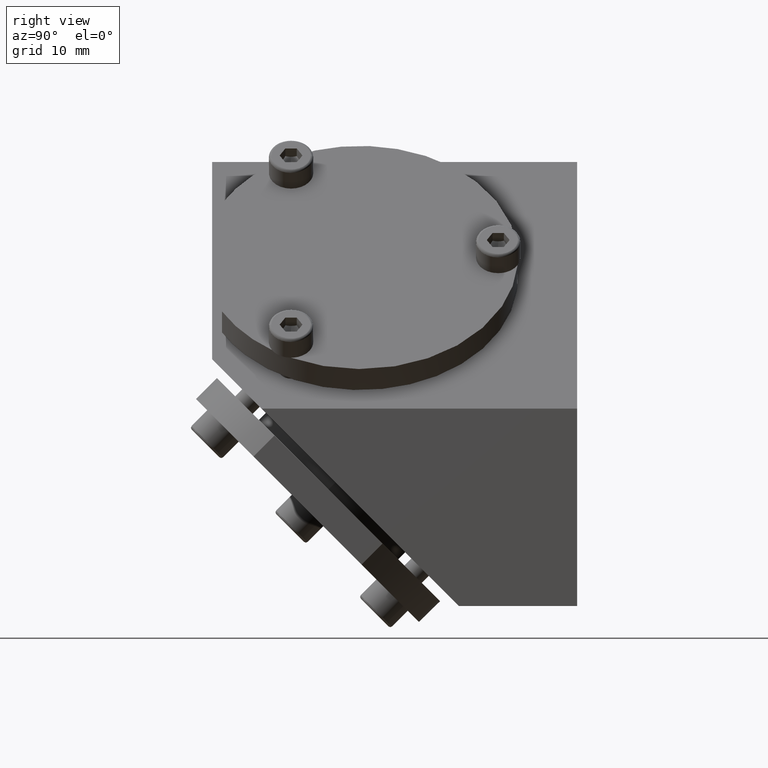
[diagram: clean part render]
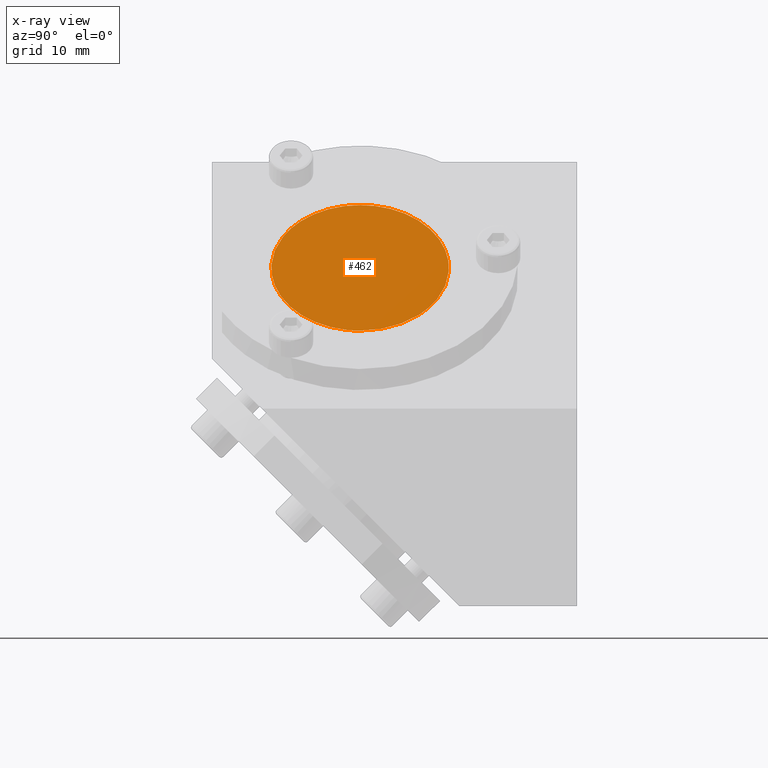
[diagram: x-ray — body ghosted, one internal face saturated and labeled with its STEP entity id]
A machine part, right view, then the same camera in x-ray: the body is ghosted and one INTERNAL B-rep face — a face not visible from any outside direction — is saturated and labeled: STEP entity #462.
In plain terms, the highlighted face is a freeform B-spline surface patch.
Its self-contained STEP definition (entity closure, byte-faithful):
#42=FACE_BOUND('',#970,.T.);
#97=B_SPLINE_SURFACE_WITH_KNOTS('',1,1,((#14634,#14635),(#14636,#14637)),
 .UNSPECIFIED.,.F.,.F.,.F.,(2,2),(2,2),(18.4967258583379,44.3892114741791),
(-14.6828819820071,12.7809581933606),.UNSPECIFIED.);
#462=ADVANCED_FACE('',(#712,#42),#97,.T.);
#712=FACE_OUTER_BOUND('',#969,.T.);
#969=EDGE_LOOP('',(#1670,#1671,#1672));
#970=EDGE_LOOP('',(#1673,#1674,#1675));
#1670=ORIENTED_EDGE('',*,*,#7386,.T.);
#1671=ORIENTED_EDGE('',*,*,#7387,.T.);
#1672=ORIENTED_EDGE('',*,*,#7388,.T.);
#1673=ORIENTED_EDGE('',*,*,#7389,.T.);
#1674=ORIENTED_EDGE('',*,*,#7390,.T.);
#1675=ORIENTED_EDGE('',*,*,#7391,.T.);
#3000=PCURVE('',#97,#4330);
#3001=PCURVE('',#97,#4331);
#3002=PCURVE('',#97,#4332);
#3003=PCURVE('',#97,#4333);
#3004=PCURVE('',#97,#4334);
#3005=PCURVE('',#97,#4335);
#3006=PCURVE('',#9173,#4336);
#3011=PCURVE('',#9174,#4341);
#3012=PCURVE('',#9174,#4342);
#3043=PCURVE('',#9177,#4373);
#3044=PCURVE('',#9177,#4374);
#3050=PCURVE('',#9178,#4380);
#4330=DEFINITIONAL_REPRESENTATION('',(#8180),#23564);
#4331=DEFINITIONAL_REPRESENTATION('',(#8182),#23564);
#4332=DEFINITIONAL_REPRESENTATION('',(#8184),#23564);
#4333=DEFINITIONAL_REPRESENTATION('',(#8186),#23564);
#4334=DEFINITIONAL_REPRESENTATION('',(#8188),#23564);
#4335=DEFINITIONAL_REPRESENTATION('',(#8190),#23564);
#4336=DEFINITIONAL_REPRESENTATION('',(#5577),#23564);
#4341=DEFINITIONAL_REPRESENTATION('',(#5582),#23564);
#4342=DEFINITIONAL_REPRESENTATION('',(#5583),#23564);
#4373=DEFINITIONAL_REPRESENTATION('',(#5603),#23564);
#4374=DEFINITIONAL_REPRESENTATION('',(#5604),#23564);
#4380=DEFINITIONAL_REPRESENTATION('',(#5610),#23564);
#5577=B_SPLINE_CURVE_WITH_KNOTS('',1,(#17609,#17610),.UNSPECIFIED.,.F.,
 .F.,(2,2),(0.,0.117809724509618),.UNSPECIFIED.);
#5582=B_SPLINE_CURVE_WITH_KNOTS('',1,(#17623,#17624),.UNSPECIFIED.,.F.,
 .F.,(2,2),(0.15707963267948,0.31415926535898),.UNSPECIFIED.);
#5583=B_SPLINE_CURVE_WITH_KNOTS('',1,(#17625,#17626),.UNSPECIFIED.,.F.,
 .F.,(2,2),(0.117809724509618,0.15707963267948),.UNSPECIFIED.);
#5603=B_SPLINE_CURVE_WITH_KNOTS('',1,(#17817,#17818),.UNSPECIFIED.,.F.,
 .F.,(2,2),(28.2743338823081,47.1238898038468),.UNSPECIFIED.);
#5604=B_SPLINE_CURVE_WITH_KNOTS('',1,(#17819,#17820),.UNSPECIFIED.,.F.,
 .F.,(2,2),(0.,28.2743338823081),.UNSPECIFIED.);
#5610=B_SPLINE_CURVE_WITH_KNOTS('',1,(#17845,#17846),.UNSPECIFIED.,.F.,
 .F.,(2,2),(47.1238898038468,56.5486677646163),.UNSPECIFIED.);
#6676=SURFACE_CURVE('',#8179,(#3000,#3044),.PCURVE_S1.);
#6677=SURFACE_CURVE('',#8181,(#3001,#3043),.PCURVE_S1.);
#6678=SURFACE_CURVE('',#8183,(#3002,#3050),.PCURVE_S1.);
#6679=SURFACE_CURVE('',#8185,(#3003,#3012),.PCURVE_S1.);
#6680=SURFACE_CURVE('',#8187,(#3004,#3011),.PCURVE_S1.);
#6681=SURFACE_CURVE('',#8189,(#3005,#3006),.PCURVE_S1.);
#7386=EDGE_CURVE('',#8836,#8837,#6676,.T.);
#7387=EDGE_CURVE('',#8837,#8838,#6677,.T.);
#7388=EDGE_CURVE('',#8838,#8836,#6678,.T.);
#7389=EDGE_CURVE('',#8841,#8839,#6679,.T.);
#7390=EDGE_CURVE('',#8839,#8840,#6680,.T.);
#7391=EDGE_CURVE('',#8840,#8841,#6681,.T.);
#8179=(
BOUNDED_CURVE()
B_SPLINE_CURVE(2,(#17555,#17556,#17557,#17558,#17559,#17560,#17561),
 .UNSPECIFIED.,.F.,.F.)
B_SPLINE_CURVE_WITH_KNOTS((3,2,2,3),(0.,4.82192437285232,18.9590913140064,
28.2743338823081),.UNSPECIFIED.)
CURVE()
GEOMETRIC_REPRESENTATION_ITEM()
RATIONAL_B_SPLINE_CURVE((1.,0.96592582628907,1.,0.707106781186548,1.,0.866025403784438,
1.))
REPRESENTATION_ITEM('')
);
#8180=(
BOUNDED_CURVE()
B_SPLINE_CURVE(2,(#17562,#17563,#17564,#17565,#17566),.UNSPECIFIED.,.F.,
 .F.)
B_SPLINE_CURVE_WITH_KNOTS((3,2,3),(0.,14.1371669411541,28.2743338823081),
 .UNSPECIFIED.)
CURVE()
GEOMETRIC_REPRESENTATION_ITEM()
RATIONAL_B_SPLINE_CURVE((1.,0.70710678118655,1.,0.70710678118655,1.))
REPRESENTATION_ITEM('')
);
#8181=(
BOUNDED_CURVE()
B_SPLINE_CURVE(2,(#17567,#17568,#17569,#17570,#17571),.UNSPECIFIED.,.F.,
 .F.)
B_SPLINE_CURVE_WITH_KNOTS((3,2,3),(28.2743338823081,33.0683997797788,47.1238898038468),
 .UNSPECIFIED.)
CURVE()
GEOMETRIC_REPRESENTATION_ITEM()
RATIONAL_B_SPLINE_CURVE((1.,0.965925826289069,1.,0.707106781186548,1.))
REPRESENTATION_ITEM('')
);
#8182=(
BOUNDED_CURVE()
B_SPLINE_CURVE(2,(#17572,#17573,#17574,#17575,#17576),.UNSPECIFIED.,.F.,
 .F.)
B_SPLINE_CURVE_WITH_KNOTS((3,2,3),(28.2743338823081,37.6991118430775,47.1238898038468),
 .UNSPECIFIED.)
CURVE()
GEOMETRIC_REPRESENTATION_ITEM()
RATIONAL_B_SPLINE_CURVE((1.,0.866025403784438,1.,0.866025403784438,1.))
REPRESENTATION_ITEM('')
);
#8183=(
BOUNDED_CURVE()
B_SPLINE_CURVE(2,(#17577,#17578,#17579),.UNSPECIFIED.,.F.,.F.)
B_SPLINE_CURVE_WITH_KNOTS((3,3),(47.1238898038468,56.5486677646163),
 .UNSPECIFIED.)
CURVE()
GEOMETRIC_REPRESENTATION_ITEM()
RATIONAL_B_SPLINE_CURVE((1.,0.866025403784436,1.))
REPRESENTATION_ITEM('')
);
#8184=(
BOUNDED_CURVE()
B_SPLINE_CURVE(2,(#17580,#17581,#17582),.UNSPECIFIED.,.F.,.F.)
B_SPLINE_CURVE_WITH_KNOTS((3,3),(47.1238898038468,56.5486677646163),
 .UNSPECIFIED.)
CURVE()
GEOMETRIC_REPRESENTATION_ITEM()
RATIONAL_B_SPLINE_CURVE((1.,0.866025403784436,1.))
REPRESENTATION_ITEM('')
);
#8185=(
BOUNDED_CURVE()
B_SPLINE_CURVE(2,(#17583,#17584,#17585),.UNSPECIFIED.,.F.,.F.)
B_SPLINE_CURVE_WITH_KNOTS((3,3),(0.117809724509618,0.15707963267948),
 .UNSPECIFIED.)
CURVE()
GEOMETRIC_REPRESENTATION_ITEM()
RATIONAL_B_SPLINE_CURVE((1.,0.923879532511267,1.))
REPRESENTATION_ITEM('')
);
#8186=(
BOUNDED_CURVE()
B_SPLINE_CURVE(2,(#17586,#17587,#17588),.UNSPECIFIED.,.F.,.F.)
B_SPLINE_CURVE_WITH_KNOTS((3,3),(0.117809724509618,0.15707963267948),
 .UNSPECIFIED.)
CURVE()
GEOMETRIC_REPRESENTATION_ITEM()
RATIONAL_B_SPLINE_CURVE((1.,0.923879532511546,1.))
REPRESENTATION_ITEM('')
);
#8187=(
BOUNDED_CURVE()
B_SPLINE_CURVE(2,(#17589,#17590,#17591,#17592,#17593),.UNSPECIFIED.,.F.,
 .F.)
B_SPLINE_CURVE_WITH_KNOTS((3,2,3),(0.15707963267948,0.23561944901923,0.31415926535898),
 .UNSPECIFIED.)
CURVE()
GEOMETRIC_REPRESENTATION_ITEM()
RATIONAL_B_SPLINE_CURVE((1.,0.707106781186548,1.,0.707106781186548,1.))
REPRESENTATION_ITEM('')
);
#8188=(
BOUNDED_CURVE()
B_SPLINE_CURVE(2,(#17594,#17595,#17596,#17597,#17598),.UNSPECIFIED.,.F.,
 .F.)
B_SPLINE_CURVE_WITH_KNOTS((3,2,3),(0.15707963267948,0.23561944901923,0.31415926535898),
 .UNSPECIFIED.)
CURVE()
GEOMETRIC_REPRESENTATION_ITEM()
RATIONAL_B_SPLINE_CURVE((1.,0.707106781186548,1.,0.707106781186548,1.))
REPRESENTATION_ITEM('')
);
#8189=(
BOUNDED_CURVE()
B_SPLINE_CURVE(2,(#17599,#17600,#17601,#17602,#17603),.UNSPECIFIED.,.F.,
 .F.)
B_SPLINE_CURVE_WITH_KNOTS((3,2,3),(0.,0.0589048622548091,0.117809724509618),
 .UNSPECIFIED.)
CURVE()
GEOMETRIC_REPRESENTATION_ITEM()
RATIONAL_B_SPLINE_CURVE((1.,0.831469612302533,1.,0.831469612302533,1.))
REPRESENTATION_ITEM('')
);
#8190=(
BOUNDED_CURVE()
B_SPLINE_CURVE(2,(#17604,#17605,#17606,#17607,#17608),.UNSPECIFIED.,.F.,
 .F.)
B_SPLINE_CURVE_WITH_KNOTS((3,2,3),(0.,0.0589048622548091,0.117809724509618),
 .UNSPECIFIED.)
CURVE()
GEOMETRIC_REPRESENTATION_ITEM()
RATIONAL_B_SPLINE_CURVE((1.,0.831469612302533,1.,0.831469612302533,1.))
REPRESENTATION_ITEM('')
);
#8836=VERTEX_POINT('',#16002);
#8837=VERTEX_POINT('',#16003);
#8838=VERTEX_POINT('',#16004);
#8839=VERTEX_POINT('',#16005);
#8840=VERTEX_POINT('',#16006);
#8841=VERTEX_POINT('',#16007);
#9173=(
BOUNDED_SURFACE()
B_SPLINE_SURFACE(1,2,((#14638,#14639,#14640,#14641,#14642,#14643,#14644,
#14645,#14646),(#14647,#14648,#14649,#14650,#14651,#14652,#14653,#14654,
#14655)),.UNSPECIFIED.,.F.,.F.,.F.)
B_SPLINE_SURFACE_WITH_KNOTS((2,2),(3,2,2,2,3),(0.,7.7091168824543),(0.,
1.5707963267949,3.14159265358979,4.71238898038469,6.28318530717959),
 .UNSPECIFIED.)
GEOMETRIC_REPRESENTATION_ITEM()
RATIONAL_B_SPLINE_SURFACE(((1.,0.707106781186548,1.,0.707106781186548,1.,
0.707106781186548,1.,0.707106781186548,1.),(1.,0.707106781186548,1.,0.707106781186548,
1.,0.707106781186548,1.,0.707106781186548,1.)))
REPRESENTATION_ITEM('')
SURFACE()
);
#9174=(
BOUNDED_SURFACE()
B_SPLINE_SURFACE(1,2,((#14656,#14657,#14658,#14659,#14660,#14661,#14662,
#14663,#14664),(#14665,#14666,#14667,#14668,#14669,#14670,#14671,#14672,
#14673)),.UNSPECIFIED.,.F.,.F.,.F.)
B_SPLINE_SURFACE_WITH_KNOTS((2,2),(3,2,2,2,3),(0.,7.7091168824543),(0.,
1.5707963267949,3.14159265358979,4.71238898038469,6.28318530717959),
 .UNSPECIFIED.)
GEOMETRIC_REPRESENTATION_ITEM()
RATIONAL_B_SPLINE_SURFACE(((1.,0.707106781186548,1.,0.707106781186548,1.,
0.707106781186548,1.,0.707106781186548,1.),(1.,0.707106781186548,1.,0.707106781186548,
1.,0.707106781186548,1.,0.707106781186548,1.)))
REPRESENTATION_ITEM('')
SURFACE()
);
#9177=(
BOUNDED_SURFACE()
B_SPLINE_SURFACE(1,2,((#14718,#14719,#14720,#14721,#14722,#14723,#14724,
#14725,#14726),(#14727,#14728,#14729,#14730,#14731,#14732,#14733,#14734,
#14735)),.UNSPECIFIED.,.F.,.F.,.F.)
B_SPLINE_SURFACE_WITH_KNOTS((2,2),(3,2,2,2,3),(0.,30.4455599767134),(0.,
1.5707963267949,3.14159265358979,4.71238898038469,6.28318530717959),
 .UNSPECIFIED.)
GEOMETRIC_REPRESENTATION_ITEM()
RATIONAL_B_SPLINE_SURFACE(((1.,0.707106781186548,1.,0.707106781186548,1.,
0.707106781186548,1.,0.707106781186548,1.),(1.,0.707106781186548,1.,0.707106781186548,
1.,0.707106781186548,1.,0.707106781186548,1.)))
REPRESENTATION_ITEM('')
SURFACE()
);
#9178=(
BOUNDED_SURFACE()
B_SPLINE_SURFACE(1,2,((#14736,#14737,#14738,#14739,#14740,#14741,#14742,
#14743,#14744),(#14745,#14746,#14747,#14748,#14749,#14750,#14751,#14752,
#14753)),.UNSPECIFIED.,.F.,.F.,.F.)
B_SPLINE_SURFACE_WITH_KNOTS((2,2),(3,2,2,2,3),(0.,30.4455599767134),(0.,
1.5707963267949,3.14159265358979,4.71238898038469,6.28318530717959),
 .UNSPECIFIED.)
GEOMETRIC_REPRESENTATION_ITEM()
RATIONAL_B_SPLINE_SURFACE(((1.,0.707106781186548,1.,0.707106781186548,1.,
0.707106781186548,1.,0.707106781186548,1.),(1.,0.707106781186548,1.,0.707106781186548,
1.,0.707106781186548,1.,0.707106781186548,1.)))
REPRESENTATION_ITEM('')
SURFACE()
);
#14634=CARTESIAN_POINT('',(13.137607351289,64.2805733528564,-9.68288212879799));
#14635=CARTESIAN_POINT('',(13.1376073512891,64.2805733528564,17.7809580465697));
#14636=CARTESIAN_POINT('',(-5.17114480944745,82.5893255135929,-9.68288212879799));
#14637=CARTESIAN_POINT('',(-5.17114480944745,82.5893255135929,17.7809580465697));
#14638=CARTESIAN_POINT('',(5.78753638165341,72.8391724599158,4.99999985320886));
#14639=CARTESIAN_POINT('',(5.78753638165341,72.8391724599158,5.04999985320886));
#14640=CARTESIAN_POINT('',(5.75218104259409,72.8745277989751,5.04999985320886));
#14641=CARTESIAN_POINT('',(5.71682570353476,72.9098831380344,5.04999985320886));
#14642=CARTESIAN_POINT('',(5.71682570353476,72.9098831380344,4.99999985320886));
#14643=CARTESIAN_POINT('',(5.71682570353476,72.9098831380344,4.94999985320886));
#14644=CARTESIAN_POINT('',(5.75218104259409,72.8745277989751,4.94999985320886));
#14645=CARTESIAN_POINT('',(5.78753638165341,72.8391724599158,4.94999985320886));
#14646=CARTESIAN_POINT('',(5.78753638165341,72.8391724599158,4.99999985320886));
#14647=CARTESIAN_POINT('',(0.336367557110272,67.3880036353727,4.99999985320886));
#14648=CARTESIAN_POINT('',(0.336367557110273,67.3880036353727,5.04999985320882));
#14649=CARTESIAN_POINT('',(0.301012218050972,67.423358974432,5.04999985320882));
#14650=CARTESIAN_POINT('',(0.265656878991671,67.4587143134913,5.04999985320882));
#14651=CARTESIAN_POINT('',(0.26565687899167,67.4587143134913,4.99999985320886));
#14652=CARTESIAN_POINT('',(0.265656878991669,67.4587143134913,4.9499998532089));
#14653=CARTESIAN_POINT('',(0.30101221805097,67.423358974432,4.9499998532089));
#14654=CARTESIAN_POINT('',(0.336367557110271,67.3880036353727,4.9499998532089));
#14655=CARTESIAN_POINT('',(0.336367557110272,67.3880036353727,4.99999985320886));
#14656=CARTESIAN_POINT('',(5.78753638165341,72.8391724599158,4.99999985320886));
#14657=CARTESIAN_POINT('',(5.78753638165341,72.8391724599158,5.04999985320886));
#14658=CARTESIAN_POINT('',(5.75218104259409,72.8745277989751,5.04999985320886));
#14659=CARTESIAN_POINT('',(5.71682570353476,72.9098831380344,5.04999985320886));
#14660=CARTESIAN_POINT('',(5.71682570353476,72.9098831380344,4.99999985320886));
#14661=CARTESIAN_POINT('',(5.71682570353476,72.9098831380344,4.94999985320886));
#14662=CARTESIAN_POINT('',(5.75218104259409,72.8745277989751,4.94999985320886));
#14663=CARTESIAN_POINT('',(5.78753638165341,72.8391724599158,4.94999985320886));
#14664=CARTESIAN_POINT('',(5.78753638165341,72.8391724599158,4.99999985320886));
#14665=CARTESIAN_POINT('',(0.336367557110272,67.3880036353727,4.99999985320886));
#14666=CARTESIAN_POINT('',(0.336367557110273,67.3880036353727,5.04999985320882));
#14667=CARTESIAN_POINT('',(0.301012218050972,67.423358974432,5.04999985320882));
#14668=CARTESIAN_POINT('',(0.265656878991671,67.4587143134913,5.04999985320882));
#14669=CARTESIAN_POINT('',(0.26565687899167,67.4587143134913,4.99999985320886));
#14670=CARTESIAN_POINT('',(0.265656878991669,67.4587143134913,4.9499998532089));
#14671=CARTESIAN_POINT('',(0.30101221805097,67.423358974432,4.9499998532089));
#14672=CARTESIAN_POINT('',(0.336367557110271,67.3880036353727,4.9499998532089));
#14673=CARTESIAN_POINT('',(0.336367557110272,67.3880036353727,4.99999985320886));
#14718=CARTESIAN_POINT('',(0.924523741579749,55.3189484366031,4.99999985320915));
#14719=CARTESIAN_POINT('',(0.924523741579749,55.3189484366031,-4.00000014679084));
#14720=CARTESIAN_POINT('',(-5.43943728909917,61.682909467282,-4.00000014679085));
#14721=CARTESIAN_POINT('',(-11.8033983197781,68.046870497961,-4.00000014679085));
#14722=CARTESIAN_POINT('',(-11.8033983197781,68.046870497961,4.99999985320915));
#14723=CARTESIAN_POINT('',(-11.8033983197781,68.046870497961,13.9999998532092));
#14724=CARTESIAN_POINT('',(-5.43943728909918,61.682909467282,13.9999998532092));
#14725=CARTESIAN_POINT('',(0.924523741579747,55.3189484366031,13.9999998532092));
#14726=CARTESIAN_POINT('',(0.924523741579749,55.3189484366031,4.99999985320915));
#14727=CARTESIAN_POINT('',(22.4527856581355,76.8472103531589,4.99999985320915));
#14728=CARTESIAN_POINT('',(22.4527856581355,76.8472103531589,-4.00000014679081));
#14729=CARTESIAN_POINT('',(16.0888246274566,83.2111713838378,-4.0000001467908));
#14730=CARTESIAN_POINT('',(9.72486359677774,89.5751324145167,-4.0000001467908));
#14731=CARTESIAN_POINT('',(9.72486359677774,89.5751324145167,4.99999985320916));
#14732=CARTESIAN_POINT('',(9.72486359677774,89.5751324145167,13.9999998532091));
#14733=CARTESIAN_POINT('',(16.0888246274566,83.2111713838378,13.9999998532091));
#14734=CARTESIAN_POINT('',(22.4527856581355,76.8472103531589,13.9999998532091));
#14735=CARTESIAN_POINT('',(22.4527856581355,76.8472103531589,4.99999985320915));
#14736=CARTESIAN_POINT('',(0.924523741579749,55.3189484366031,4.99999985320915));
#14737=CARTESIAN_POINT('',(0.924523741579749,55.3189484366031,-4.00000014679084));
#14738=CARTESIAN_POINT('',(-5.43943728909917,61.682909467282,-4.00000014679085));
#14739=CARTESIAN_POINT('',(-11.8033983197781,68.046870497961,-4.00000014679085));
#14740=CARTESIAN_POINT('',(-11.8033983197781,68.046870497961,4.99999985320915));
#14741=CARTESIAN_POINT('',(-11.8033983197781,68.046870497961,13.9999998532092));
#14742=CARTESIAN_POINT('',(-5.43943728909918,61.682909467282,13.9999998532092));
#14743=CARTESIAN_POINT('',(0.924523741579747,55.3189484366031,13.9999998532092));
#14744=CARTESIAN_POINT('',(0.924523741579749,55.3189484366031,4.99999985320915));
#14745=CARTESIAN_POINT('',(22.4527856581355,76.8472103531589,4.99999985320915));
#14746=CARTESIAN_POINT('',(22.4527856581355,76.8472103531589,-4.00000014679081));
#14747=CARTESIAN_POINT('',(16.0888246274566,83.2111713838378,-4.0000001467908));
#14748=CARTESIAN_POINT('',(9.72486359677774,89.5751324145167,-4.0000001467908));
#14749=CARTESIAN_POINT('',(9.72486359677774,89.5751324145167,4.99999985320916));
#14750=CARTESIAN_POINT('',(9.72486359677774,89.5751324145167,13.9999998532091));
#14751=CARTESIAN_POINT('',(16.0888246274566,83.2111713838378,13.9999998532091));
#14752=CARTESIAN_POINT('',(22.4527856581355,76.8472103531589,13.9999998532091));
#14753=CARTESIAN_POINT('',(22.4527856581355,76.8472103531589,4.99999985320915));
#16002=CARTESIAN_POINT('',(8.32989748922151,69.0882832149239,-2.79422878085081));
#16003=CARTESIAN_POINT('',(1.96593645854267,75.4522442456027,12.7942284872691));
#16004=CARTESIAN_POINT('',(11.511878004561,65.9063026995844,4.99999985320915));
#16005=CARTESIAN_POINT('',(5.17291697388219,72.2452637302632,5.03535519226819));
#16006=CARTESIAN_POINT('',(5.12291697388218,72.2952637302632,4.96464451414956));
#16007=CARTESIAN_POINT('',(5.18327231294149,72.2349083912039,4.99999985320886));
#17555=CARTESIAN_POINT('',(8.32989748922151,69.0882832149239,-2.79422878085081));
#17556=CARTESIAN_POINT('',(6.8531351927156,70.5650455114297,-4.00000014679082));
#17557=CARTESIAN_POINT('',(5.14791697388208,72.2702637302633,-4.00000014679083));
#17558=CARTESIAN_POINT('',(-1.21604405679681,78.6342247609422,-4.00000014679083));
#17559=CARTESIAN_POINT('',(-1.2160440567968,78.6342247609422,4.99999985320915));
#17560=CARTESIAN_POINT('',(-1.2160440567968,78.6342247609422,10.1961522759158));
#17561=CARTESIAN_POINT('',(1.96593645854267,75.4522442456027,12.7942284872691));
#17562=CARTESIAN_POINT('',(25.2958543492286,-7.79422863405995));
#17563=CARTESIAN_POINT('',(33.0900829832886,-12.2942286340598));
#17564=CARTESIAN_POINT('',(37.5900829832885,-4.49999999999991));
#17565=CARTESIAN_POINT('',(42.0900829832884,3.29422863406));
#17566=CARTESIAN_POINT('',(34.2958543492285,7.79422863405996));
#17567=CARTESIAN_POINT('',(1.96593645854267,75.4522442456027,12.7942284872691));
#17568=CARTESIAN_POINT('',(3.44269875504856,73.9754819490968,13.9999998532091));
#17569=CARTESIAN_POINT('',(5.14791697388209,72.2702637302633,13.9999998532091));
#17570=CARTESIAN_POINT('',(11.511878004561,65.9063026995844,13.9999998532091));
#17571=CARTESIAN_POINT('',(11.511878004561,65.9063026995844,4.99999985320915));
#17572=CARTESIAN_POINT('',(34.2958543492285,7.79422863405996));
#17573=CARTESIAN_POINT('',(29.7958543492286,10.3923048454133));
#17574=CARTESIAN_POINT('',(25.2958543492285,7.79422863405996));
#17575=CARTESIAN_POINT('',(20.7958543492286,5.19615242270666));
#17576=CARTESIAN_POINT('',(20.7958543492286,1.06581410364015E-14));
#17577=CARTESIAN_POINT('',(11.511878004561,65.9063026995844,4.99999985320915));
#17578=CARTESIAN_POINT('',(11.511878004561,65.9063026995844,-0.196152569497516));
#17579=CARTESIAN_POINT('',(8.32989748922151,69.0882832149239,-2.79422878085081));
#17580=CARTESIAN_POINT('',(20.7958543492286,1.06581410364015E-14));
#17581=CARTESIAN_POINT('',(20.7958543492286,-5.19615242270666));
#17582=CARTESIAN_POINT('',(25.2958543492286,-7.79422863405995));
#17583=CARTESIAN_POINT('',(5.18327231294149,72.2349083912039,4.99999985320886));
#17584=CARTESIAN_POINT('',(5.1832723129415,72.2349083912039,5.02071053132751));
#17585=CARTESIAN_POINT('',(5.17291697388219,72.2452637302632,5.03535519226819));
#17586=CARTESIAN_POINT('',(29.7458543492285,-2.79776202205539E-13));
#17587=CARTESIAN_POINT('',(29.7458543492285,0.0207106781183601));
#17588=CARTESIAN_POINT('',(29.7604990101691,0.0353553390590502));
#17589=CARTESIAN_POINT('',(5.17291697388219,72.2452637302632,5.03535519226819));
#17590=CARTESIAN_POINT('',(5.14791697388219,72.2702637302632,5.07071053132752));
#17591=CARTESIAN_POINT('',(5.12291697388218,72.2952637302632,5.03535519226821));
#17592=CARTESIAN_POINT('',(5.09791697388218,72.3202637302632,4.99999985320889));
#17593=CARTESIAN_POINT('',(5.12291697388218,72.2952637302632,4.96464451414956));
#17594=CARTESIAN_POINT('',(29.7604990101691,0.0353553390590502));
#17595=CARTESIAN_POINT('',(29.7958543492284,0.0707106781183794));
#17596=CARTESIAN_POINT('',(29.8312096882878,0.0353553390590626));
#17597=CARTESIAN_POINT('',(29.8665650273471,-2.54983015290245E-13));
#17598=CARTESIAN_POINT('',(29.8312096882878,-0.0353553390595893));
#17599=CARTESIAN_POINT('',(5.12291697388218,72.2952637302632,4.96464451414956));
#17600=CARTESIAN_POINT('',(5.13962143983018,72.2785592643152,4.94102083185372));
#17601=CARTESIAN_POINT('',(5.16144687638587,72.2567338277595,4.95380587658331));
#17602=CARTESIAN_POINT('',(5.1832723129415,72.2349083912039,4.9665909213129));
#17603=CARTESIAN_POINT('',(5.18327231294149,72.2349083912039,4.99999985320886));
#17604=CARTESIAN_POINT('',(29.8312096882878,-0.0353553390595893));
#17605=CARTESIAN_POINT('',(29.8075860059919,-0.058979021355432));
#17606=CARTESIAN_POINT('',(29.7767201776102,-0.046193976625835));
#17607=CARTESIAN_POINT('',(29.7458543492285,-0.0334089318962376));
#17608=CARTESIAN_POINT('',(29.7458543492285,-2.79776202205539E-13));
#17609=CARTESIAN_POINT('',(0.854558441227124,3.9269908169865));
#17610=CARTESIAN_POINT('',(0.85455844122715,6.28318530717959));
#17623=CARTESIAN_POINT('',(0.854558441227135,0.785398163397548));
#17624=CARTESIAN_POINT('',(0.854558441227124,3.9269908169865));
#17625=CARTESIAN_POINT('',(0.85455844122715,0.));
#17626=CARTESIAN_POINT('',(0.854558441227135,0.785398163397548));
#17817=CARTESIAN_POINT('',(14.9727799883567,4.17661960562332));
#17818=CARTESIAN_POINT('',(14.9727799883567,6.28318530717959));
#17819=CARTESIAN_POINT('',(14.9727799883567,1.03502695203353));
#17820=CARTESIAN_POINT('',(14.9727799883567,4.17661960562332));
#17845=CARTESIAN_POINT('',(14.9727799883567,0.));
#17846=CARTESIAN_POINT('',(14.9727799883567,1.03502695203353));
#23564=(
GEOMETRIC_REPRESENTATION_CONTEXT(2)
PARAMETRIC_REPRESENTATION_CONTEXT()
REPRESENTATION_CONTEXT('pspace','')
);